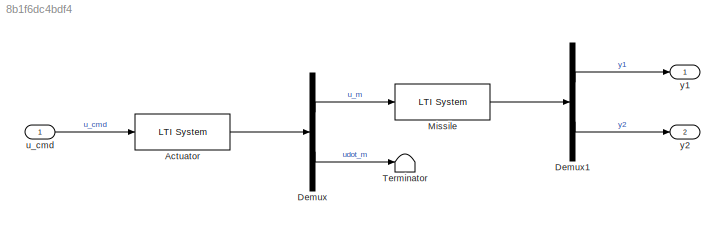
MODEL slx_8b1f6dc4bdf4
KIND model
CONFIG AbsTol = auto
CONFIG EnableMultiTasking = off
CONFIG FixedStep = auto
CONFIG MaxStep = auto
CONFIG MinStep = auto
CONFIG RelTol = 1e-3
CONFIG SampleTimeConstraint = Unconstrained
CONFIG SolverName = VariableStepAuto
CONFIG StartTime = 0.0
CONFIG StopTime = 10.0
BLOCK [Reference] Actuator  REF=cstblocks/LTI System
  SourceBlock = cstblocks/LTI System
  SourceType = LTI Block
BLOCK [Demux] Demux
  Outputs = 2
BLOCK [Demux] Demux1
  Outputs = 2
BLOCK [Reference] Missile  REF=cstblocks/LTI System
  SourceBlock = cstblocks/LTI System
  SourceType = LTI Block
BLOCK [Terminator] Terminator
BLOCK [Inport] u_cmd
BLOCK [Outport] y1
BLOCK [Outport] y2
  Port = 2
LINE Actuator:1 -> Demux:1
LINE Demux1:1 -> y1:1
LINE Demux1:2 -> y2:1
LINE Demux:1 -> Missile:1
LINE Demux:2 -> Terminator:1
LINE Missile:1 -> Demux1:1
LINE u_cmd:1 -> Actuator:1
